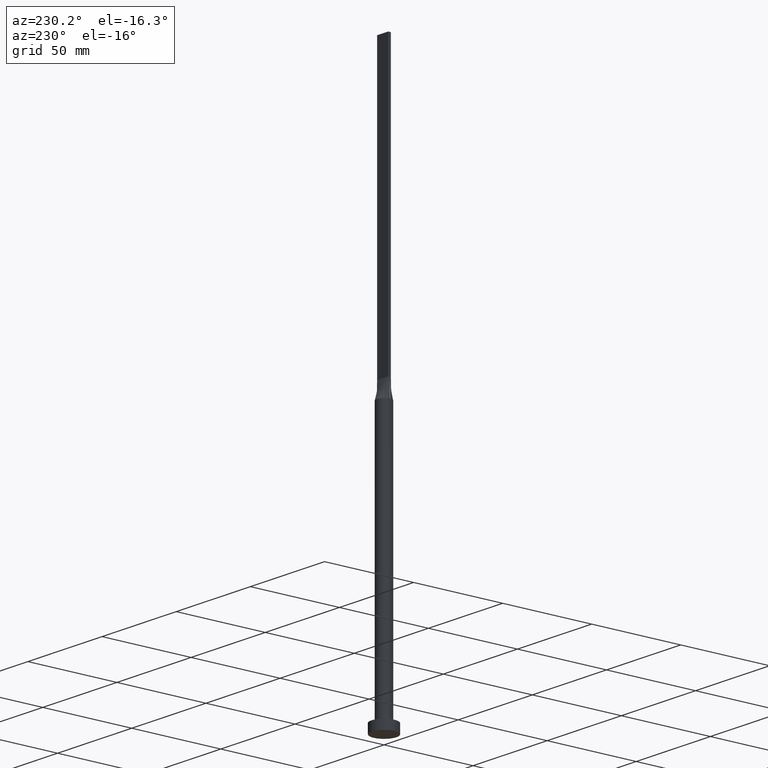
[diagram: clean part render]
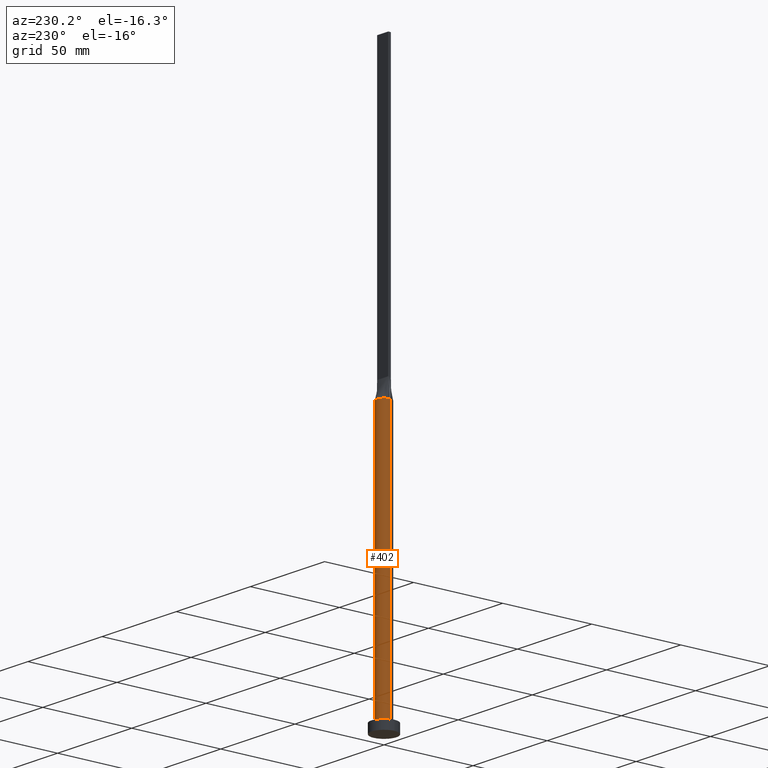
[diagram: same view with one face highlighted and labeled with its STEP entity id]
A machine part, auxiliary view. The second image highlights one B-rep face of the part: STEP entity #402.
In plain terms, the highlighted cylindrical surface (edge-blend (fillet) strip) has radius 4 mm, axis along (-0, -0, -1).
Its self-contained STEP definition (entity closure, byte-faithful):
#2 = CARTESIAN_POINT ( 'NONE',  ( -3.748423346357937280, 1.451418640363469015, 150.0000000000000284 ) ) ;
#13 = CARTESIAN_POINT ( 'NONE',  ( 3.999622889843378992, 9.846808768795811108E-16, 150.0000000000000000 ) ) ;
#14 = EDGE_CURVE ( 'NONE', #454, #213, #564, .T. ) ;
#21 = AXIS2_PLACEMENT_3D ( 'NONE', #94, #268, #356 ) ;
#31 = LINE ( 'NONE', #69, #229 ) ;
#41 = CARTESIAN_POINT ( 'NONE',  ( 3.390424152328985752, 2.159240079384420419, 150.0000000000000568 ) ) ;
#56 = VERTEX_POINT ( 'NONE', #488 ) ;
#61 = DIRECTION ( 'NONE',  ( 1.000000000000000000, 0.000000000000000000, 0.000000000000000000 ) ) ;
#69 = CARTESIAN_POINT ( 'NONE',  ( 4.000000000000000000, 4.898587196589412829E-16, 150.0000000000000000 ) ) ;
#72 = CARTESIAN_POINT ( 'NONE',  ( -4.000000000000000000, 0.000000000000000000, 150.0000000000000000 ) ) ;
#91 = VERTEX_POINT ( 'NONE', #247 ) ;
#94 = CARTESIAN_POINT ( 'NONE',  ( 0.000000000000000000, 0.000000000000000000, 150.0000000000000000 ) ) ;
#95 = ORIENTED_EDGE ( 'NONE', *, *, #14, .F. ) ;
#99 = CARTESIAN_POINT ( 'NONE',  ( 0.5465359351457045323, 4.000000000000000888, 150.0000000000000853 ) ) ;
#105 = ORIENTED_EDGE ( 'NONE', *, *, #209, .F. ) ;
#110 = AXIS2_PLACEMENT_3D ( 'NONE', #150, #328, #494 ) ;
#131 = VERTEX_POINT ( 'NONE', #13 ) ;
#139 = CARTESIAN_POINT ( 'NONE',  ( 3.922678046951852959, 0.7845356715334603770, 150.0000000000000000 ) ) ;
#143 = CARTESIAN_POINT ( 'NONE',  ( 2.055729527861830608, 3.471178582471582619, 149.9999999999999432 ) ) ;
#150 = CARTESIAN_POINT ( 'NONE',  ( 0.000000000000000000, 0.000000000000000000, 150.0000000000000000 ) ) ;
#152 = ORIENTED_EDGE ( 'NONE', *, *, #381, .F. ) ;
#153 = CARTESIAN_POINT ( 'NONE',  ( -3.140797583654740599, 2.520780954342106916, 150.0000000000000000 ) ) ;
#162 = CARTESIAN_POINT ( 'NONE',  ( 0.000000000000000000, 0.000000000000000000, 5.000000000000000000 ) ) ;
#173 = ORIENTED_EDGE ( 'NONE', *, *, #485, .T. ) ;
#177 = EDGE_CURVE ( 'NONE', #131, #91, #254, .T. ) ;
#178 = DIRECTION ( 'NONE',  ( 0.000000000000000000, 0.000000000000000000, 1.000000000000000000 ) ) ;
#209 = EDGE_CURVE ( 'NONE', #213, #56, #378, .T. ) ;
#213 = VERTEX_POINT ( 'NONE', #526 ) ;
#220 = AXIS2_PLACEMENT_3D ( 'NONE', #534, #178, #256 ) ;
#229 = VECTOR ( 'NONE', #523, 1000.000000000000000 ) ;
#233 = CARTESIAN_POINT ( 'NONE',  ( 3.858220138661116128, 1.104977361065556440, 150.0000000000000000 ) ) ;
#239 = VERTEX_POINT ( 'NONE', #470 ) ;
#247 = CARTESIAN_POINT ( 'NONE',  ( 3.922678046951852959, 0.7845356715334603770, 150.0000000000000000 ) ) ;
#254 = CIRCLE ( 'NONE', #220, 4.000000000000000000 ) ;
#256 = DIRECTION ( 'NONE',  ( 1.000000000000000000, 0.000000000000000000, 0.000000000000000000 ) ) ;
#265 = EDGE_CURVE ( 'NONE', #131, #239, #31, .T. ) ;
#268 = DIRECTION ( 'NONE',  ( 0.000000000000000000, 0.000000000000000000, 1.000000000000000000 ) ) ;
#281 = CYLINDRICAL_SURFACE ( 'NONE', #110, 4.000000000000000000 ) ;
#288 = CARTESIAN_POINT ( 'NONE',  ( -2.474203369347175219, 3.177619198138199152, 150.0000000000000000 ) ) ;
#289 = CARTESIAN_POINT ( 'NONE',  ( -0.5465359351457050874, 4.000000000000000000, 150.0000000000000284 ) ) ;
#325 = CARTESIAN_POINT ( 'NONE',  ( -3.922691944042750123, 0.7845383302616953936, 150.0000000000000000 ) ) ;
#328 = DIRECTION ( 'NONE',  ( -0.000000000000000000, -0.000000000000000000, -1.000000000000000000 ) ) ;
#333 = CARTESIAN_POINT ( 'NONE',  ( -3.858220138661117460, 1.104977361065555996, 150.0000000000000000 ) ) ;
#352 = VECTOR ( 'NONE', #471, 1000.000000000000000 ) ;
#356 = DIRECTION ( 'NONE',  ( 1.000000000000000000, 0.000000000000000000, 0.000000000000000000 ) ) ;
#367 = ORIENTED_EDGE ( 'NONE', *, *, #265, .T. ) ;
#370 = CARTESIAN_POINT ( 'NONE',  ( 1.091295599582912113, 3.883835547170277014, 150.0000000000000568 ) ) ;
#378 = LINE ( 'NONE', #72, #352 ) ;
#381 = EDGE_CURVE ( 'NONE', #91, #454, #463, .T. ) ;
#401 = CARTESIAN_POINT ( 'NONE',  ( 3.140797583654741931, 2.520780954342106028, 150.0000000000000284 ) ) ;
#402 = ADVANCED_FACE ( 'NONE', ( #509 ), #281, .T. ) ;
#414 = ORIENTED_EDGE ( 'NONE', *, *, #177, .F. ) ;
#418 = AXIS2_PLACEMENT_3D ( 'NONE', #162, #465, #61 ) ;
#441 = CARTESIAN_POINT ( 'NONE',  ( 3.748423346357935948, 1.451418640363468349, 150.0000000000000284 ) ) ;
#452 = CARTESIAN_POINT ( 'NONE',  ( -3.922691944042750123, 0.7845383302616953936, 150.0000000000000000 ) ) ;
#454 = VERTEX_POINT ( 'NONE', #452 ) ;
#463 = B_SPLINE_CURVE_WITH_KNOTS ( 'NONE', 3,
 ( #139, #233, #441, #41, #401, #576, #143, #370, #99, #289, #506, #580, #288, #153, #539, #2, #333, #325 ),
 .UNSPECIFIED., .F., .F.,
 ( 4, 2, 2, 2, 2, 2, 2, 2, 4 ),
 ( 0.000000000000000000, 0.1249999999999999167, 0.2499999999999998890, 0.3749999999999998335, 0.4999999999999998890, 0.6249999999999998890, 0.7499999999999998890, 0.8750000000000000000, 1.000000000000000000 ),
 .UNSPECIFIED. ) ;
#465 = DIRECTION ( 'NONE',  ( 0.000000000000000000, 0.000000000000000000, 1.000000000000000000 ) ) ;
#470 = CARTESIAN_POINT ( 'NONE',  ( 4.000000000000000000, 4.898587196589412829E-16, 5.000000000000000000 ) ) ;
#471 = DIRECTION ( 'NONE',  ( -0.000000000000000000, -0.000000000000000000, -1.000000000000000000 ) ) ;
#485 = EDGE_CURVE ( 'NONE', #239, #56, #558, .T. ) ;
#488 = CARTESIAN_POINT ( 'NONE',  ( -4.000000000000000000, 0.000000000000000000, 5.000000000000000000 ) ) ;
#494 = DIRECTION ( 'NONE',  ( -1.000000000000000000, 0.000000000000000000, 0.000000000000000000 ) ) ;
#506 = CARTESIAN_POINT ( 'NONE',  ( -1.091295599582913445, 3.883835547170275682, 150.0000000000000000 ) ) ;
#509 = FACE_OUTER_BOUND ( 'NONE', #557, .T. ) ;
#523 = DIRECTION ( 'NONE',  ( -0.000000000000000000, -0.000000000000000000, -1.000000000000000000 ) ) ;
#526 = CARTESIAN_POINT ( 'NONE',  ( -3.999622889843378992, -9.724176664205578004E-16, 150.0000000000000000 ) ) ;
#534 = CARTESIAN_POINT ( 'NONE',  ( 0.000000000000000000, 0.000000000000000000, 150.0000000000000000 ) ) ;
#539 = CARTESIAN_POINT ( 'NONE',  ( -3.390424152328988416, 2.159240079384419975, 150.0000000000000284 ) ) ;
#557 = EDGE_LOOP ( 'NONE', ( #414, #367, #173, #105, #95, #152 ) ) ;
#558 = CIRCLE ( 'NONE', #418, 4.000000000000000000 ) ;
#564 = CIRCLE ( 'NONE', #21, 4.000000000000000000 ) ;
#576 = CARTESIAN_POINT ( 'NONE',  ( 2.474203369347174331, 3.177619198138197820, 150.0000000000000000 ) ) ;
#580 = CARTESIAN_POINT ( 'NONE',  ( -2.055729527861832828, 3.471178582471583063, 150.0000000000000000 ) ) ;